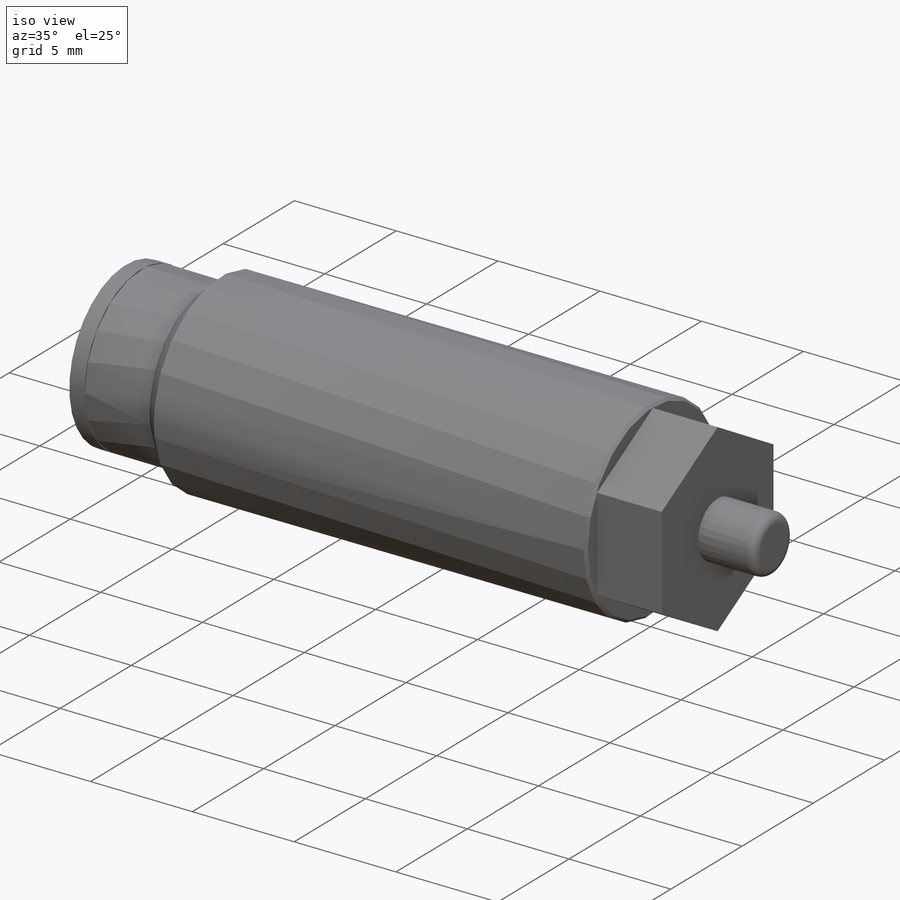
[diagram: iso view]
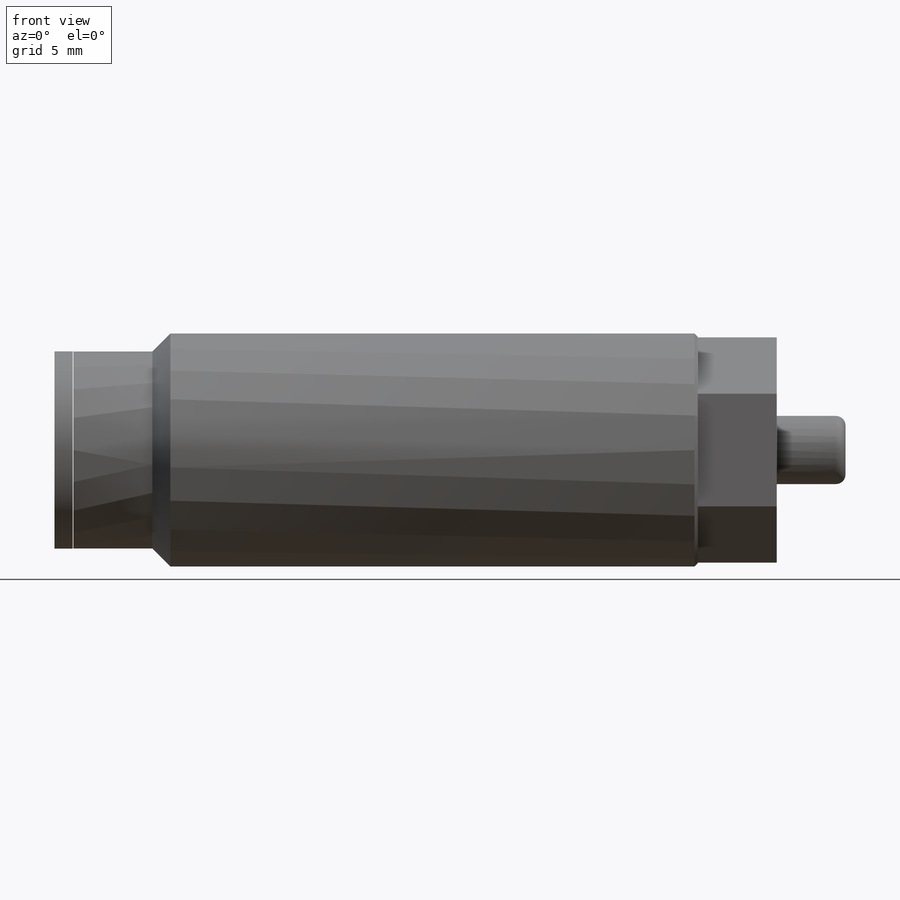
[diagram: front view]
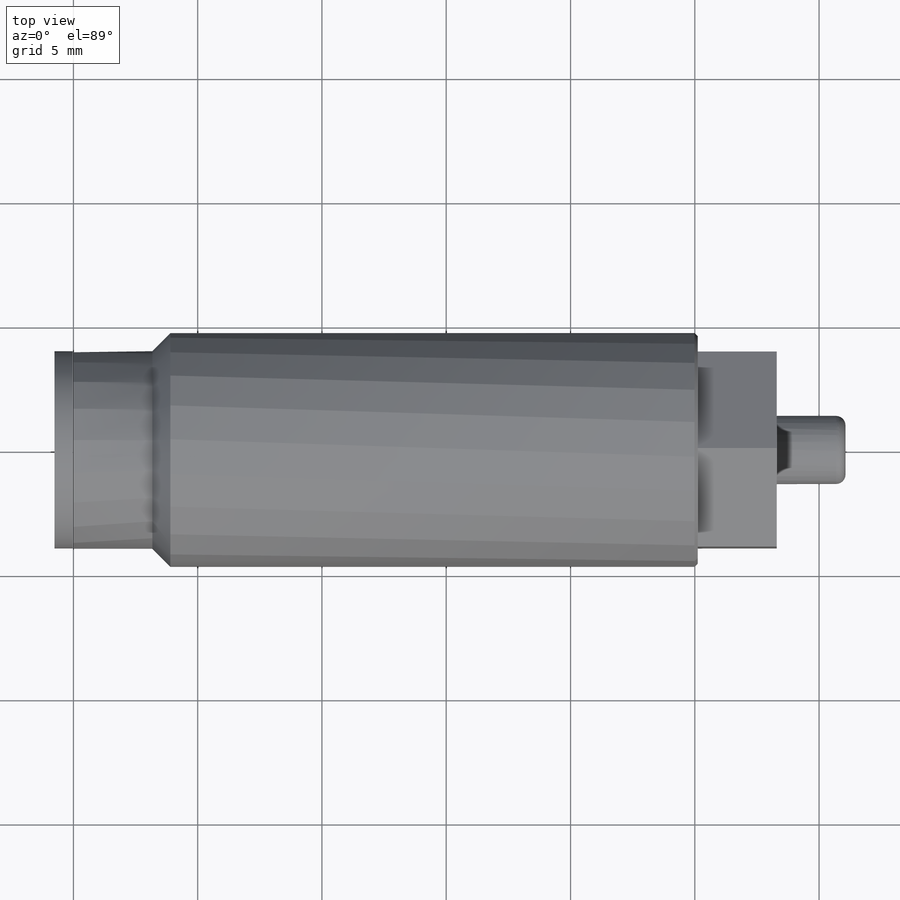
[diagram: top view]
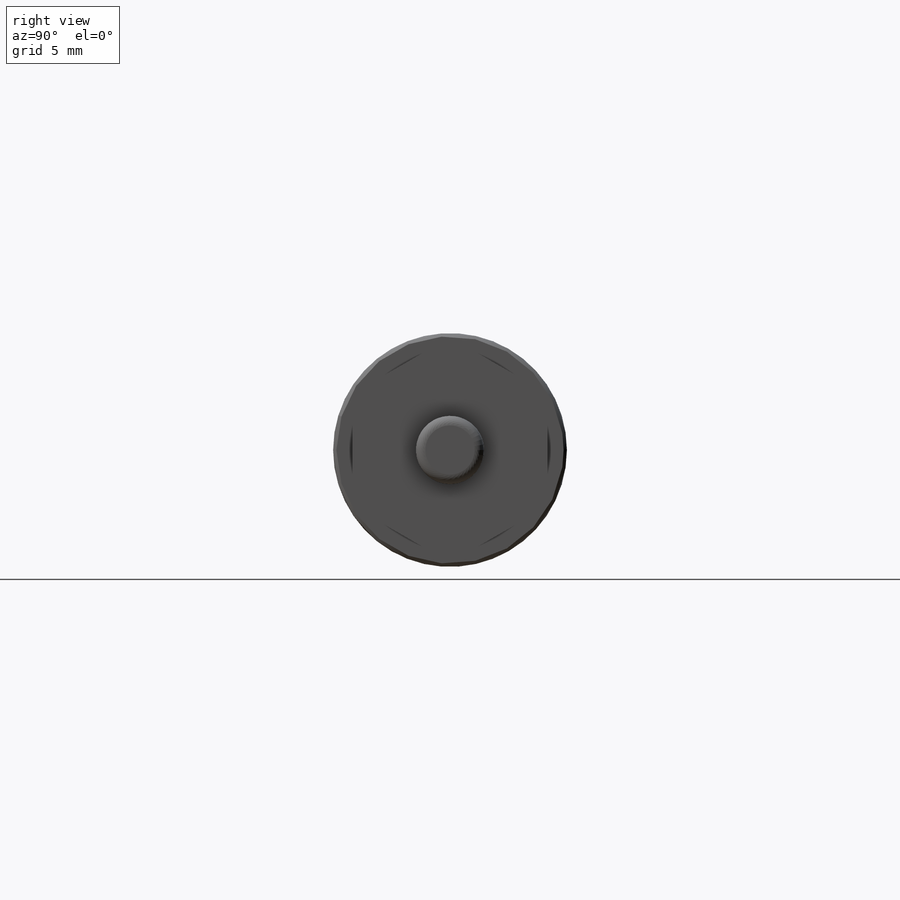
[diagram: right view]
SOLIDWORKS PART (.sldprt)
format: sldprt  version: not decoded by parser v0  size: 220,672 bytes
history: native  units: mm
features: sketch x6, revolve x3, plane x2, material x1, extrude x1, hole x1, chamfer x1, fillet x1 (+13 scaffold rows collapsed)
feature tree (29):
  scaffold x13  (default folders/planes/origin — collapsed)
  material  "Alloy Steel"
  sketch  "Sketch11"  dims[D1=3.81mm D2=0.7366mm D3=7.9502mm D4=0.0254mm]
  revolve  "Revolve5"  Angle=360deg
  plane  "Plane4"
  sketch  "Sketch12"  dims[c1.D1=~9.40562mm c1.D2=0.0254mm c1.D3=7.9502mm c1.D4=~0.72771mm c2.D4=45.0deg c2.D5=3.175mm c2.D6=25.1206mm]
  revolve  "Revolve6"  Angle=360deg
  sketch  "Sketch13"  dims[D1=7.8486mm]
  extrude  "Extrude3"  Depth=3.175mm
  plane  "Plane5"
  sketch  "Sketch14"  dims[D1=2.7432mm D2=31.0642mm]
  revolve  "Revolve7"  Angle=360deg
  hole  "Hole3"  Diameter=4.9784mm Depth=0.254mm
  sketch  "Sketch16"
  sketch  "Sketch15"  dims[Diameter=4.9784mm Depth=0.254mm]
  chamfer  "Chamfer3"  Distance=0.13081mm Angle=45deg
  fillet  "Fillet3"  Radius=0.381mm
decode coverage: 12 of 13 modeling features carry decoded parameters
note: ~ marks probable driven/reference dimensions
note: suppression state not decoded; provenance and decode notes live in map.json
